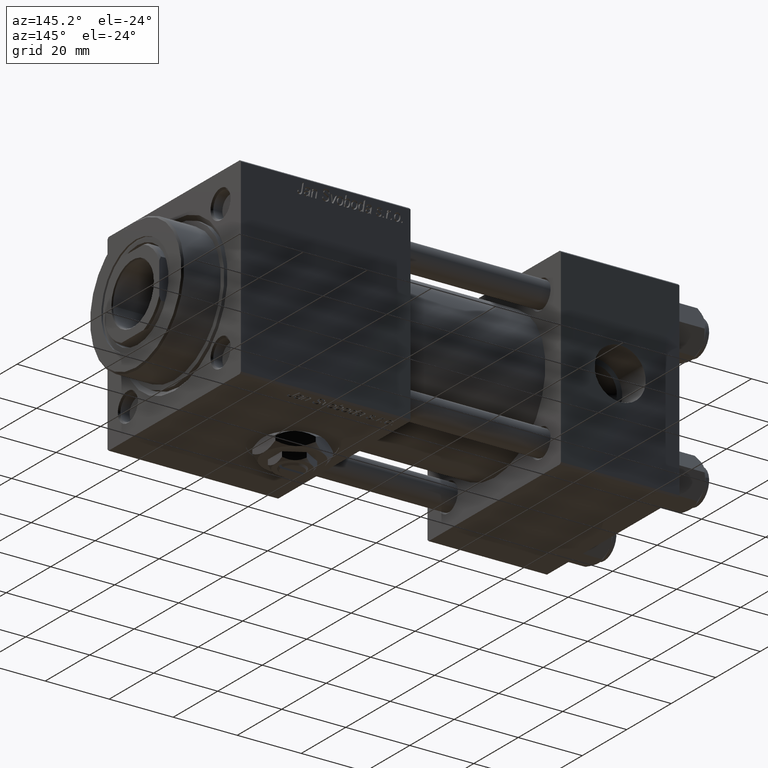
[diagram: clean part render]
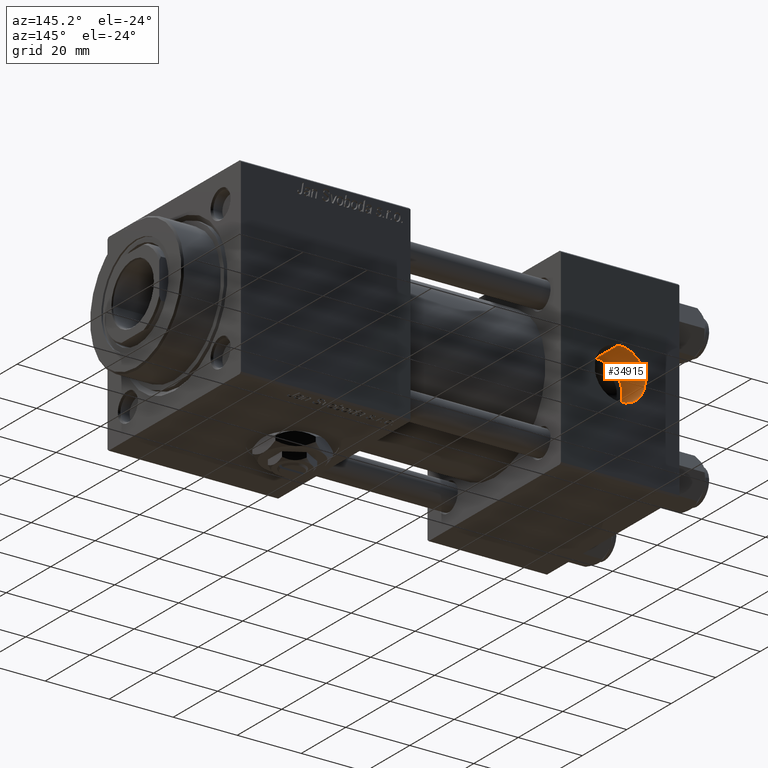
[diagram: same view with one face highlighted and labeled with its STEP entity id]
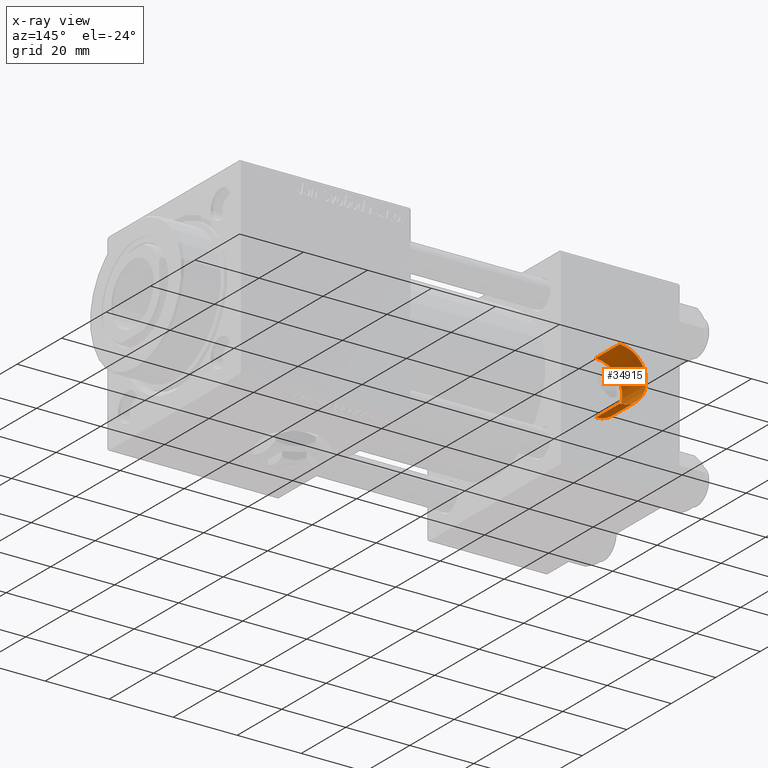
[diagram: x-ray of the same camera — body ghosted, the highlighted face saturated]
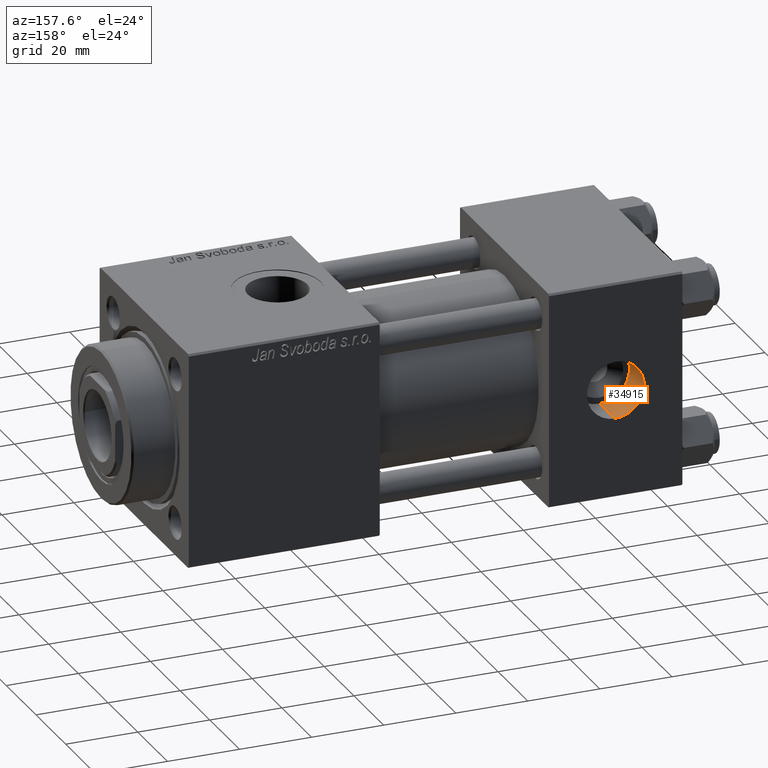
[diagram: same view with one face highlighted and labeled with its STEP entity id]
A machine part, auxiliary view. The second image highlights one B-rep face of the part: STEP entity #34915.
The next image is the same camera in x-ray: the body ghosted, the highlighted face saturated — about 0% of this face is hidden behind the body in this view.
A second angle (auxiliary view) of the same face is appended — the face is thin or edge-on in the first view.
In plain terms, the highlighted cylindrical surface (edge-blend (fillet) strip) has radius 8.33 mm, axis along (0, 1, 0).
Its self-contained STEP definition (entity closure, byte-faithful):
#112 = DIRECTION ( 'NONE',  ( -0.000000000000000000, 1.000000000000000000, -0.000000000000000000 ) ) ;
#3114 = CIRCLE ( 'NONE', #18313, 8.330000000000001847 ) ;
#7464 = VERTEX_POINT ( 'NONE', #53074 ) ;
#7881 = EDGE_CURVE ( 'NONE', #7464, #42655, #3114, .T. ) ;
#9992 = CARTESIAN_POINT ( 'NONE',  ( 18.50000000000000000, 29.79999999999999361, 8.330000000000001847 ) ) ;
#10100 = ORIENTED_EDGE ( 'NONE', *, *, #35962, .T. ) ;
#12779 = EDGE_CURVE ( 'NONE', #7464, #27046, #55769, .T. ) ;
#13033 = CARTESIAN_POINT ( 'NONE',  ( 18.50000000000000000, 18.99999999999999289, 8.330000000000001847 ) ) ;
#13810 = CARTESIAN_POINT ( 'NONE',  ( 18.50000000000000000, 18.99999999999999289, -8.330000000000001847 ) ) ;
#14670 = CARTESIAN_POINT ( 'NONE',  ( 18.50000000000000000, 18.99999999999999289, 8.330000000000001847 ) ) ;
#14861 = VERTEX_POINT ( 'NONE', #9992 ) ;
#15288 = EDGE_CURVE ( 'NONE', #42655, #14861, #37274, .T. ) ;
#18313 = AXIS2_PLACEMENT_3D ( 'NONE', #53290, #53883, #48518 ) ;
#18314 = CARTESIAN_POINT ( 'NONE',  ( 18.50000000000000000, 29.79999999999999361, -8.330000000000001847 ) ) ;
#20238 = ORIENTED_EDGE ( 'NONE', *, *, #15288, .F. ) ;
#22823 = DIRECTION ( 'NONE',  ( 0.000000000000000000, 0.000000000000000000, 1.000000000000000000 ) ) ;
#23818 = FACE_OUTER_BOUND ( 'NONE', #46467, .T. ) ;
#23876 = DIRECTION ( 'NONE',  ( -0.000000000000000000, 1.000000000000000000, -0.000000000000000000 ) ) ;
#24115 = DIRECTION ( 'NONE',  ( 0.000000000000000000, 0.000000000000000000, 1.000000000000000000 ) ) ;
#27046 = VERTEX_POINT ( 'NONE', #18314 ) ;
#27847 = AXIS2_PLACEMENT_3D ( 'NONE', #55275, #27873, #22823 ) ;
#27873 = DIRECTION ( 'NONE',  ( 0.000000000000000000, 1.000000000000000000, 0.000000000000000000 ) ) ;
#28034 = ORIENTED_EDGE ( 'NONE', *, *, #12779, .T. ) ;
#28888 = DIRECTION ( 'NONE',  ( -0.000000000000000000, 1.000000000000000000, -0.000000000000000000 ) ) ;
#34915 = ADVANCED_FACE ( 'NONE', ( #23818 ), #37214, .F. ) ;
#35962 = EDGE_CURVE ( 'NONE', #27046, #14861, #42136, .T. ) ;
#37214 = CYLINDRICAL_SURFACE ( 'NONE', #57343, 8.330000000000001847 ) ;
#37274 = LINE ( 'NONE', #14670, #50768 ) ;
#38146 = ORIENTED_EDGE ( 'NONE', *, *, #7881, .F. ) ;
#42136 = CIRCLE ( 'NONE', #27847, 8.330000000000001847 ) ;
#42655 = VERTEX_POINT ( 'NONE', #13033 ) ;
#46467 = EDGE_LOOP ( 'NONE', ( #38146, #28034, #10100, #20238 ) ) ;
#48518 = DIRECTION ( 'NONE',  ( 0.000000000000000000, 0.000000000000000000, 1.000000000000000000 ) ) ;
#50768 = VECTOR ( 'NONE', #23876, 1000.000000000000000 ) ;
#53074 = CARTESIAN_POINT ( 'NONE',  ( 18.50000000000000000, 18.99999999999999289, -8.330000000000001847 ) ) ;
#53290 = CARTESIAN_POINT ( 'NONE',  ( 18.50000000000000000, 18.99999999999999289, 0.000000000000000000 ) ) ;
#53547 = VECTOR ( 'NONE', #112, 1000.000000000000000 ) ;
#53883 = DIRECTION ( 'NONE',  ( 0.000000000000000000, 1.000000000000000000, 0.000000000000000000 ) ) ;
#55275 = CARTESIAN_POINT ( 'NONE',  ( 18.50000000000000000, 29.79999999999999361, 0.000000000000000000 ) ) ;
#55700 = CARTESIAN_POINT ( 'NONE',  ( 18.50000000000000000, 18.99999999999999289, 0.000000000000000000 ) ) ;
#55769 = LINE ( 'NONE', #13810, #53547 ) ;
#57343 = AXIS2_PLACEMENT_3D ( 'NONE', #55700, #28888, #24115 ) ;